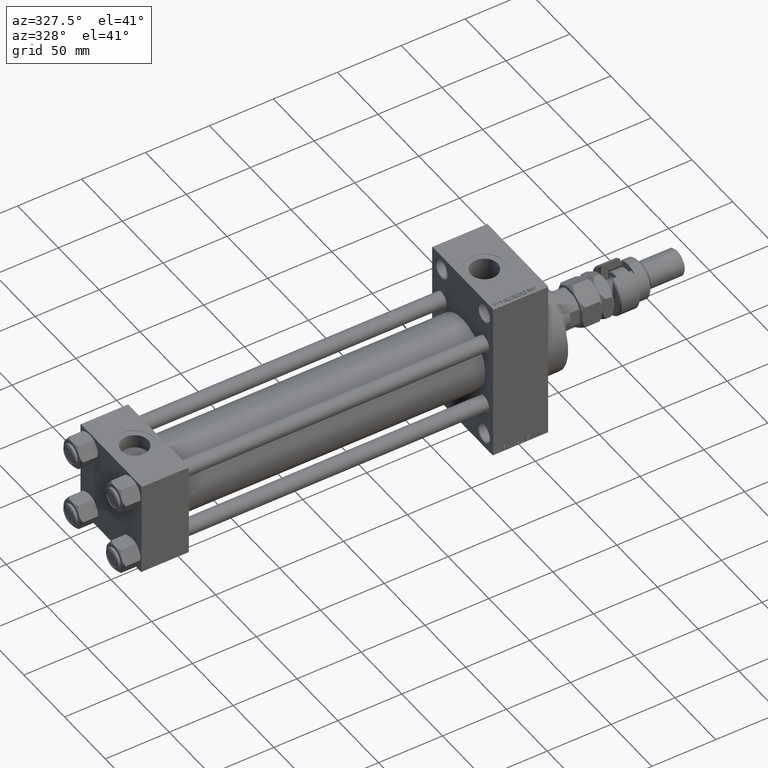
[diagram: clean part render]
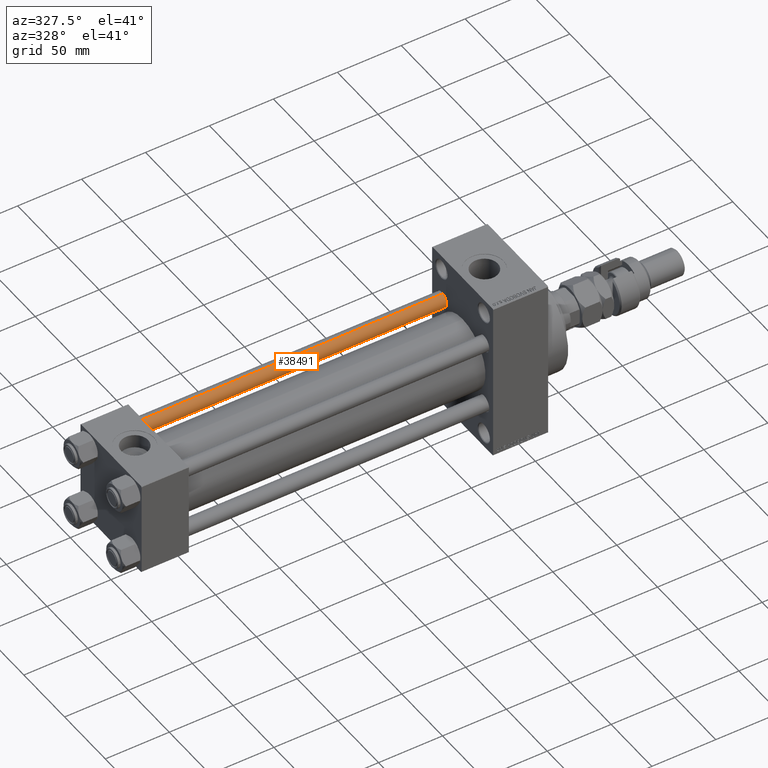
[diagram: same view with one face highlighted and labeled with its STEP entity id]
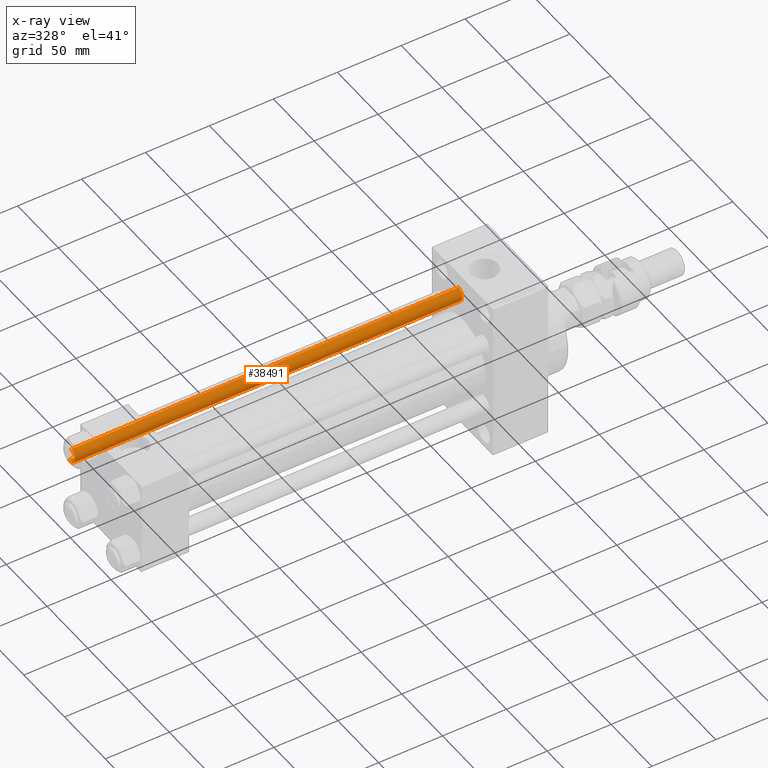
[diagram: x-ray of the same camera — body ghosted, the highlighted face saturated]
A machine part, auxiliary view. The second image highlights one B-rep face of the part: STEP entity #38491.
The next image is the same camera in x-ray: the body ghosted, the highlighted face saturated — about 0% of this face is hidden behind the body in this view.
In plain terms, the highlighted cylindrical surface (edge-blend (fillet) strip) has radius 6 mm, axis along (-1, -0, 0).
Its self-contained STEP definition (entity closure, byte-faithful):
#359 = CARTESIAN_POINT ( 'NONE',  ( 6.000000000000000888, 7.347880794884120722E-16, 303.5000000000000000 ) ) ;
#734 = VERTEX_POINT ( 'NONE', #34686 ) ;
#2019 = AXIS2_PLACEMENT_3D ( 'NONE', #35210, #27340, #15375 ) ;
#2202 = CARTESIAN_POINT ( 'NONE',  ( -6.000000000000000888, 0.000000000000000000, 304.0000000000000000 ) ) ;
#9152 = CARTESIAN_POINT ( 'NONE',  ( -6.000000000000000888, 0.000000000000000000, 0.4999999999999449329 ) ) ;
#9341 = LINE ( 'NONE', #2202, #21120 ) ;
#9525 = ORIENTED_EDGE ( 'NONE', *, *, #31239, .T. ) ;
#11222 = CIRCLE ( 'NONE', #20169, 6.000000000000000888 ) ;
#11448 = ORIENTED_EDGE ( 'NONE', *, *, #17639, .T. ) ;
#12561 = ORIENTED_EDGE ( 'NONE', *, *, #16113, .F. ) ;
#13784 = CARTESIAN_POINT ( 'NONE',  ( 0.000000000000000000, 0.000000000000000000, 304.0000000000000000 ) ) ;
#15375 = DIRECTION ( 'NONE',  ( 1.000000000000000000, 0.000000000000000000, 0.000000000000000000 ) ) ;
#16113 = EDGE_CURVE ( 'NONE', #45363, #33245, #31093, .T. ) ;
#16487 = EDGE_LOOP ( 'NONE', ( #12561, #37393, #11448, #9525 ) ) ;
#17639 = EDGE_CURVE ( 'NONE', #734, #26755, #9341, .T. ) ;
#17706 = DIRECTION ( 'NONE',  ( -0.000000000000000000, -0.000000000000000000, -1.000000000000000000 ) ) ;
#20169 = AXIS2_PLACEMENT_3D ( 'NONE', #30042, #34360, #47256 ) ;
#21120 = VECTOR ( 'NONE', #17706, 1000.000000000000000 ) ;
#26755 = VERTEX_POINT ( 'NONE', #9152 ) ;
#27340 = DIRECTION ( 'NONE',  ( -0.000000000000000000, -0.000000000000000000, 1.000000000000000000 ) ) ;
#29055 = DIRECTION ( 'NONE',  ( -1.000000000000000000, 0.000000000000000000, 0.000000000000000000 ) ) ;
#30042 = CARTESIAN_POINT ( 'NONE',  ( 0.000000000000000000, 0.000000000000000000, 303.5000000000000000 ) ) ;
#30589 = DIRECTION ( 'NONE',  ( -0.000000000000000000, -0.000000000000000000, -1.000000000000000000 ) ) ;
#31093 = LINE ( 'NONE', #46595, #39047 ) ;
#31239 = EDGE_CURVE ( 'NONE', #26755, #33245, #40955, .T. ) ;
#32865 = DIRECTION ( 'NONE',  ( -0.000000000000000000, -0.000000000000000000, -1.000000000000000000 ) ) ;
#33245 = VERTEX_POINT ( 'NONE', #36796 ) ;
#33365 = CYLINDRICAL_SURFACE ( 'NONE', #42213, 6.000000000000000888 ) ;
#34069 = EDGE_CURVE ( 'NONE', #45363, #734, #11222, .T. ) ;
#34360 = DIRECTION ( 'NONE',  ( 0.000000000000000000, 0.000000000000000000, -1.000000000000000000 ) ) ;
#34686 = CARTESIAN_POINT ( 'NONE',  ( -6.000000000000000888, 0.000000000000000000, 303.5000000000000000 ) ) ;
#35210 = CARTESIAN_POINT ( 'NONE',  ( 0.000000000000000000, 0.000000000000000000, 0.4999999999999449329 ) ) ;
#36796 = CARTESIAN_POINT ( 'NONE',  ( 6.000000000000000888, 7.347880794884120722E-16, 0.4999999999999449329 ) ) ;
#37393 = ORIENTED_EDGE ( 'NONE', *, *, #34069, .T. ) ;
#38491 = ADVANCED_FACE ( 'NONE', ( #45061 ), #33365, .T. ) ;
#39047 = VECTOR ( 'NONE', #30589, 1000.000000000000000 ) ;
#40955 = CIRCLE ( 'NONE', #2019, 6.000000000000000888 ) ;
#42213 = AXIS2_PLACEMENT_3D ( 'NONE', #13784, #32865, #29055 ) ;
#45061 = FACE_OUTER_BOUND ( 'NONE', #16487, .T. ) ;
#45363 = VERTEX_POINT ( 'NONE', #359 ) ;
#46595 = CARTESIAN_POINT ( 'NONE',  ( 6.000000000000000888, 7.347880794884120722E-16, 304.0000000000000000 ) ) ;
#47256 = DIRECTION ( 'NONE',  ( 1.000000000000000000, 0.000000000000000000, 0.000000000000000000 ) ) ;